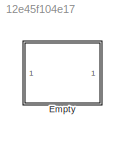
MODEL slx_12e45f104e17
KIND library
CONFIG AbsTol = auto
CONFIG EnableMultiTasking = off
CONFIG FixedStep = auto
CONFIG MaxStep = auto
CONFIG MinStep = auto
CONFIG RelTol = 1e-3
CONFIG SampleTimeConstraint = Unconstrained
CONFIG SolverName = VariableStepAuto
CONFIG StartTime = 0.0
CONFIG StopTime = 10.0
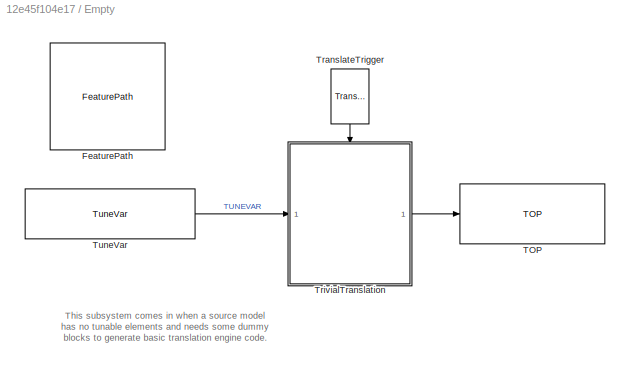
BLOCK [SubSystem] Empty
BLOCK [Reference] Empty/FeaturePath  REF=FeaturePath/FeaturePath
  SourceBlock = FeaturePath/FeaturePath
  SourceProductName = Bose Talaria
  SourceType = Talaria Feature Path
BLOCK [Reference] Empty/TOP  REF=TOP/TOP
  SourceBlock = TOP/TOP
  SourceProductName = Bose Talaria
  SourceType = Talaria Target Overlay Parameter
BLOCK [Reference] Empty/TranslateTrigger  REF=TuneVar/TranslateTrigger
  NameLocation = left
  SourceBlock = TuneVar/TranslateTrigger
  SourceProductName = Bose Talaria
  SourceType = Talaria Translate Trigger
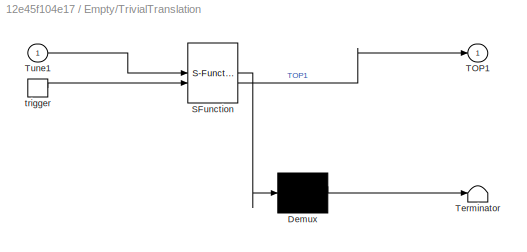
BLOCK [SubSystem] Empty/TrivialTranslation
  ErrorFcn = Stateflow.Translate.translate
  PermitHierarchicalResolution = ExplicitOnly
  SFBlockType = MATLAB Function
  TreatAsAtomicUnit = on
BLOCK [Demux] Empty/TrivialTranslation/ Demux 
  Outputs = 1
BLOCK [S-Function] Empty/TrivialTranslation/ SFunction 
  EnableBusSupport = off
  FunctionName = sf_sfun
  PortCounts = [2 2]
  SFcnIsStateOwnerBlock = off
  SFunctionDeploymentMode = off
  Tag = Stateflow S-Function 8
BLOCK [Terminator] Empty/TrivialTranslation/ Terminator 
BLOCK [Outport] Empty/TrivialTranslation/TOP1
  VectorParamsAs1DForOutWhenUnconnected = off
BLOCK [Inport] Empty/TrivialTranslation/Tune1
BLOCK [TriggerPort] Empty/TrivialTranslation/trigger
  ShowOutputPort = on
  StatesWhenEnabling = held
  TriggerType = function-call
  VariantControl = Variant
BLOCK [Reference] Empty/TuneVar  REF=TuneVar/TuneVar
  SourceBlock = TuneVar/TuneVar
  SourceProductName = Bose Talaria
  SourceType = Talaria Tune Variable
ANNOTATION Empty: This subsystem comes in when a source model has no tunable elements and needs some dummy blocks to generate basic translation engine code.
LINE Empty/TranslateTrigger:1 -> Empty/TrivialTranslation:trigger
LINE Empty/TrivialTranslation:1 -> Empty/TOP:1
LINE Empty/TuneVar:1 -> Empty/TrivialTranslation:1
CHART Empty/TrivialTranslation states=1 transitions=1
  STATE_LABEL 'eML_blk_kernel()'
  STATE_LABEL 'SCRIPT:\nfunction TOP1  = fcn(Tune1)\n%#codegen\n\n% ----- To access TuneVar maximum size, current size, and current value:\n%   Note: TuneVar signals arrive with exposed variable size information.\n%         The expressions below illustrate for the "Tune1" input argument.\n%\n%   size(Tune1.Value) : the maximum possible size of the Tune1 variable\n%\n%   Tune.Size   : the current size of *valid* data in Tu...<+770ch>'
CHART  states=0 transitions=0
